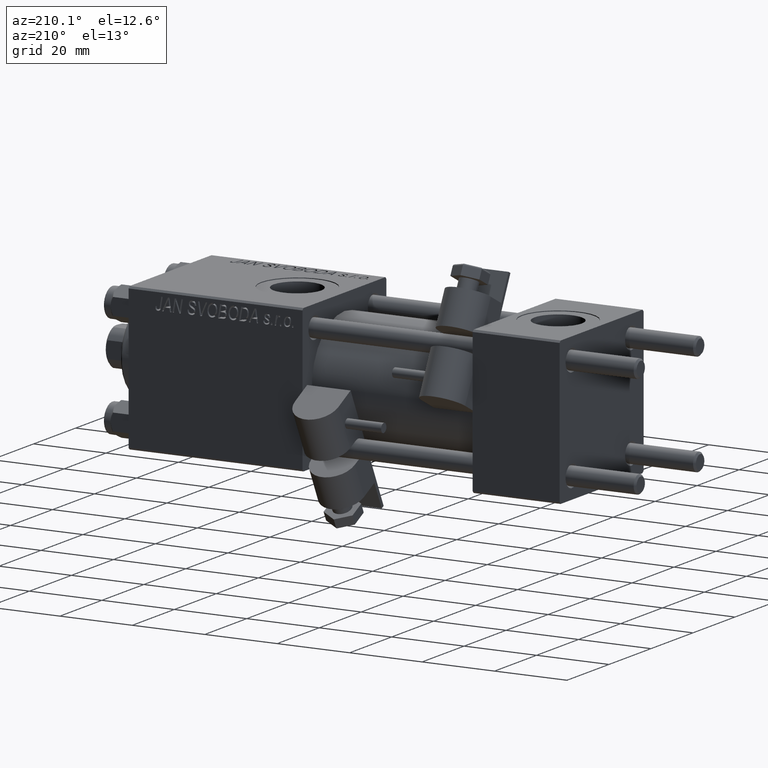
[diagram: clean part render]
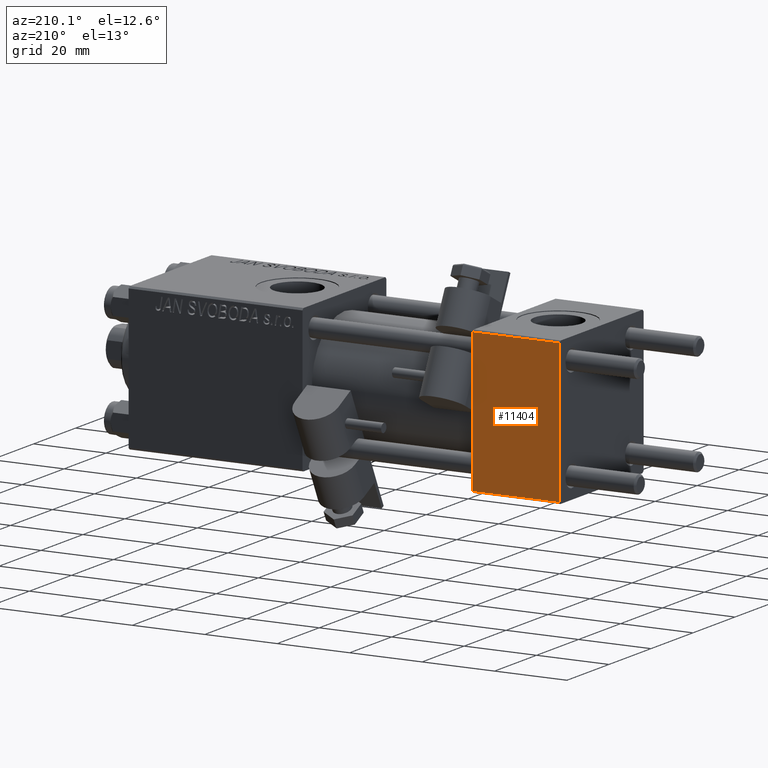
[diagram: same view with one face highlighted and labeled with its STEP entity id]
A machine part, auxiliary view. The second image highlights one B-rep face of the part: STEP entity #11404.
In plain terms, the highlighted planar face has unit normal (0, 1, 0).
Its self-contained STEP definition (entity closure, byte-faithful):
#21 = VECTOR ( 'NONE', #49128, 1000.000000000000000 ) ;
#1879 = CARTESIAN_POINT ( 'NONE',  ( 24.00000000000000000, 20.00000000000000000, 20.00000000000000000 ) ) ;
#2940 = PLANE ( 'NONE',  #23029 ) ;
#4218 = VECTOR ( 'NONE', #40872, 1000.000000000000000 ) ;
#4267 = LINE ( 'NONE', #1879, #28644 ) ;
#5475 = EDGE_CURVE ( 'NONE', #44914, #47501, #4267, .T. ) ;
#6905 = ORIENTED_EDGE ( 'NONE', *, *, #8294, .T. ) ;
#8294 = EDGE_CURVE ( 'NONE', #8561, #44914, #13648, .T. ) ;
#8561 = VERTEX_POINT ( 'NONE', #48999 ) ;
#9712 = LINE ( 'NONE', #45197, #34132 ) ;
#9967 = DIRECTION ( 'NONE',  ( 0.000000000000000000, 0.000000000000000000, -1.000000000000000000 ) ) ;
#11404 = ADVANCED_FACE ( 'NONE', ( #13762 ), #2940, .T. ) ;
#11827 = EDGE_LOOP ( 'NONE', ( #13563, #19703, #33115, #6905 ) ) ;
#13563 = ORIENTED_EDGE ( 'NONE', *, *, #5475, .T. ) ;
#13648 = LINE ( 'NONE', #37565, #21 ) ;
#13762 = FACE_OUTER_BOUND ( 'NONE', #11827, .T. ) ;
#14360 = CARTESIAN_POINT ( 'NONE',  ( 0.000000000000000000, 20.00000000000000000, -19.50000000000002132 ) ) ;
#14765 = CARTESIAN_POINT ( 'NONE',  ( 24.00000000000000000, 20.00000000000000000, 20.00000000000000000 ) ) ;
#19703 = ORIENTED_EDGE ( 'NONE', *, *, #46295, .T. ) ;
#21595 = CARTESIAN_POINT ( 'NONE',  ( 24.00000000000000000, 20.00000000000000000, -19.50000000000002132 ) ) ;
#23029 = AXIS2_PLACEMENT_3D ( 'NONE', #14765, #37673, #25614 ) ;
#23683 = EDGE_CURVE ( 'NONE', #8561, #34218, #9712, .T. ) ;
#25614 = DIRECTION ( 'NONE',  ( 0.000000000000000000, -0.000000000000000000, 1.000000000000000000 ) ) ;
#25880 = CARTESIAN_POINT ( 'NONE',  ( 24.00000000000000000, 20.00000000000000000, 19.49999999999999289 ) ) ;
#28644 = VECTOR ( 'NONE', #48935, 1000.000000000000000 ) ;
#32382 = LINE ( 'NONE', #21595, #4218 ) ;
#33115 = ORIENTED_EDGE ( 'NONE', *, *, #23683, .F. ) ;
#34132 = VECTOR ( 'NONE', #9967, 1000.000000000000000 ) ;
#34218 = VERTEX_POINT ( 'NONE', #14360 ) ;
#37565 = CARTESIAN_POINT ( 'NONE',  ( 24.00000000000000000, 20.00000000000000000, 19.49999999999999289 ) ) ;
#37673 = DIRECTION ( 'NONE',  ( -0.000000000000000000, 1.000000000000000000, 0.000000000000000000 ) ) ;
#40872 = DIRECTION ( 'NONE',  ( -1.000000000000000000, 0.000000000000000000, 0.000000000000000000 ) ) ;
#42575 = CARTESIAN_POINT ( 'NONE',  ( 24.00000000000000000, 20.00000000000000000, -19.50000000000002132 ) ) ;
#44914 = VERTEX_POINT ( 'NONE', #25880 ) ;
#45197 = CARTESIAN_POINT ( 'NONE',  ( 0.000000000000000000, 20.00000000000000000, 20.00000000000000000 ) ) ;
#46295 = EDGE_CURVE ( 'NONE', #47501, #34218, #32382, .T. ) ;
#47501 = VERTEX_POINT ( 'NONE', #42575 ) ;
#48935 = DIRECTION ( 'NONE',  ( 0.000000000000000000, 0.000000000000000000, -1.000000000000000000 ) ) ;
#48999 = CARTESIAN_POINT ( 'NONE',  ( 0.000000000000000000, 20.00000000000000000, 19.49999999999999289 ) ) ;
#49128 = DIRECTION ( 'NONE',  ( 1.000000000000000000, 0.000000000000000000, 0.000000000000000000 ) ) ;